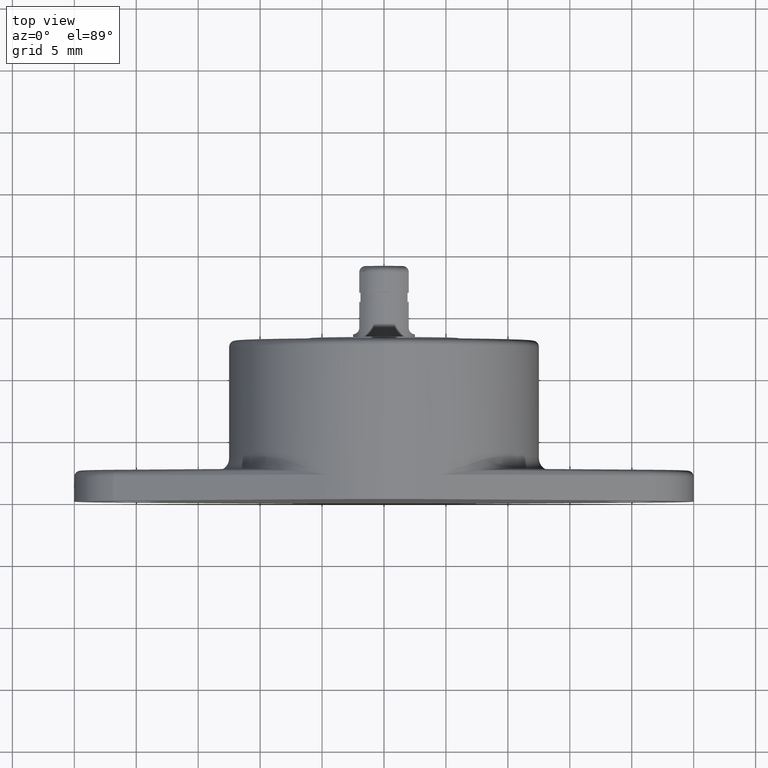
[diagram: clean part render]
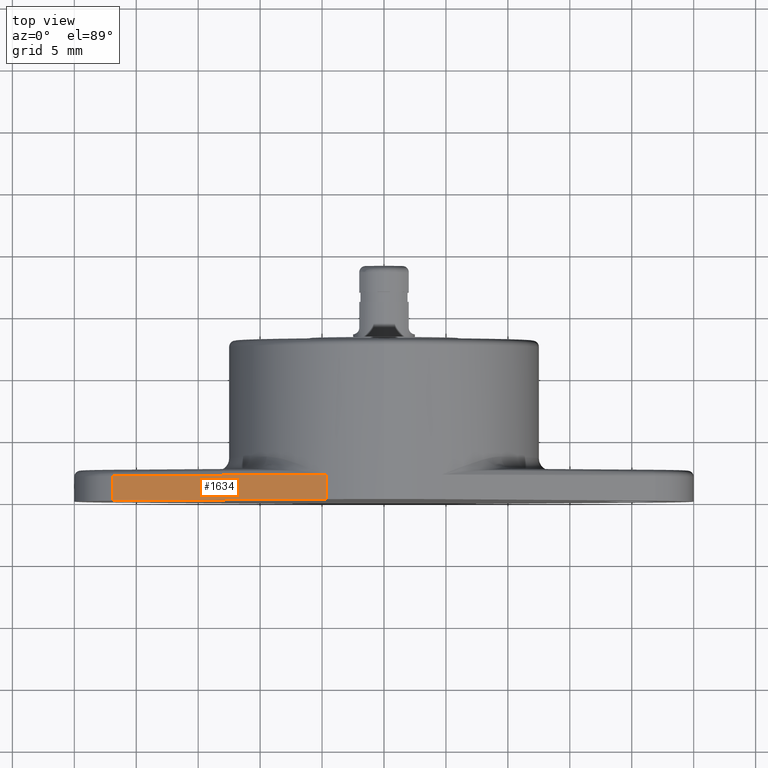
[diagram: same view with one face highlighted and labeled with its STEP entity id]
A machine part, top view. The second image highlights one B-rep face of the part: STEP entity #1634.
In plain terms, the highlighted planar face has unit normal (0.375, 0, -0.927).
Its self-contained STEP definition (entity closure, byte-faithful):
#117 = CARTESIAN_POINT ( 'NONE',  ( -21.87499999993954300, 4.336808689942017700E-016, 4.635124054024457200 ) ) ;
#136 = DIRECTION ( 'NONE',  ( -0.9270248108796208500, 0.0000000000000000000, -0.3750000000181374900 ) ) ;
#153 = CARTESIAN_POINT ( 'NONE',  ( -4.687500000157030800, 4.336808689942017700E-016, 11.58781013597997000 ) ) ;
#270 = VECTOR ( 'NONE', #1806, 1000.000000000000000 ) ;
#313 = ORIENTED_EDGE ( 'NONE', *, *, #1056, .T. ) ;
#345 = CARTESIAN_POINT ( 'NONE',  ( -21.87499999993954000, 4.336808689942017700E-016, 4.635124054024458900 ) ) ;
#429 = EDGE_LOOP ( 'NONE', ( #1436, #313, #1197, #545 ) ) ;
#447 = FACE_OUTER_BOUND ( 'NONE', #429, .T. ) ;
#529 = VECTOR ( 'NONE', #1427, 1000.000000000000100 ) ;
#545 = ORIENTED_EDGE ( 'NONE', *, *, #1889, .F. ) ;
#582 = LINE ( 'NONE', #153, #1486 ) ;
#587 = EDGE_CURVE ( 'NONE', #1638, #1680, #582, .T. ) ;
#745 = CARTESIAN_POINT ( 'NONE',  ( -21.87499999993954000, 4.336808689942017700E-016, 4.635124054024458900 ) ) ;
#780 = VERTEX_POINT ( 'NONE', #922 ) ;
#922 = CARTESIAN_POINT ( 'NONE',  ( -21.87499999993954300, 4.336808689942017700E-016, 4.635124054024457200 ) ) ;
#1046 = DIRECTION ( 'NONE',  ( 0.3750000000181375500, 0.0000000000000000000, -0.9270248108796209600 ) ) ;
#1056 = EDGE_CURVE ( 'NONE', #1680, #1698, #1927, .T. ) ;
#1156 = VECTOR ( 'NONE', #1479, 1000.000000000000100 ) ;
#1169 = CARTESIAN_POINT ( 'NONE',  ( -21.87499999993954300, 1.999999999115181800, 4.635124054024457200 ) ) ;
#1197 = ORIENTED_EDGE ( 'NONE', *, *, #1480, .F. ) ;
#1219 = AXIS2_PLACEMENT_3D ( 'NONE', #745, #1046, #136 ) ;
#1371 = CARTESIAN_POINT ( 'NONE',  ( -4.687500000157030800, 4.336808689942017700E-016, 11.58781013597997000 ) ) ;
#1427 = DIRECTION ( 'NONE',  ( -0.9270248108796208500, -0.0000000000000000000, -0.3750000000181374900 ) ) ;
#1436 = ORIENTED_EDGE ( 'NONE', *, *, #587, .T. ) ;
#1479 = DIRECTION ( 'NONE',  ( -0.9270248108796208500, 0.0000000000000000000, -0.3750000000181374900 ) ) ;
#1480 = EDGE_CURVE ( 'NONE', #780, #1698, #1497, .T. ) ;
#1486 = VECTOR ( 'NONE', #1851, 1000.000000000000000 ) ;
#1497 = LINE ( 'NONE', #117, #270 ) ;
#1572 = CARTESIAN_POINT ( 'NONE',  ( -21.87499999993954300, 1.999999999115181800, 4.635124054024457200 ) ) ;
#1634 = ADVANCED_FACE ( 'NONE', ( #447 ), #1970, .F. ) ;
#1638 = VERTEX_POINT ( 'NONE', #1371 ) ;
#1680 = VERTEX_POINT ( 'NONE', #1713 ) ;
#1698 = VERTEX_POINT ( 'NONE', #1572 ) ;
#1713 = CARTESIAN_POINT ( 'NONE',  ( -4.687500000157030800, 1.999999999115181800, 11.58781013597997000 ) ) ;
#1755 = LINE ( 'NONE', #345, #529 ) ;
#1806 = DIRECTION ( 'NONE',  ( -0.0000000000000000000, 1.000000000000000000, -0.0000000000000000000 ) ) ;
#1851 = DIRECTION ( 'NONE',  ( -0.0000000000000000000, 1.000000000000000000, -0.0000000000000000000 ) ) ;
#1889 = EDGE_CURVE ( 'NONE', #1638, #780, #1755, .T. ) ;
#1927 = LINE ( 'NONE', #1169, #1156 ) ;
#1970 = PLANE ( 'NONE',  #1219 ) ;